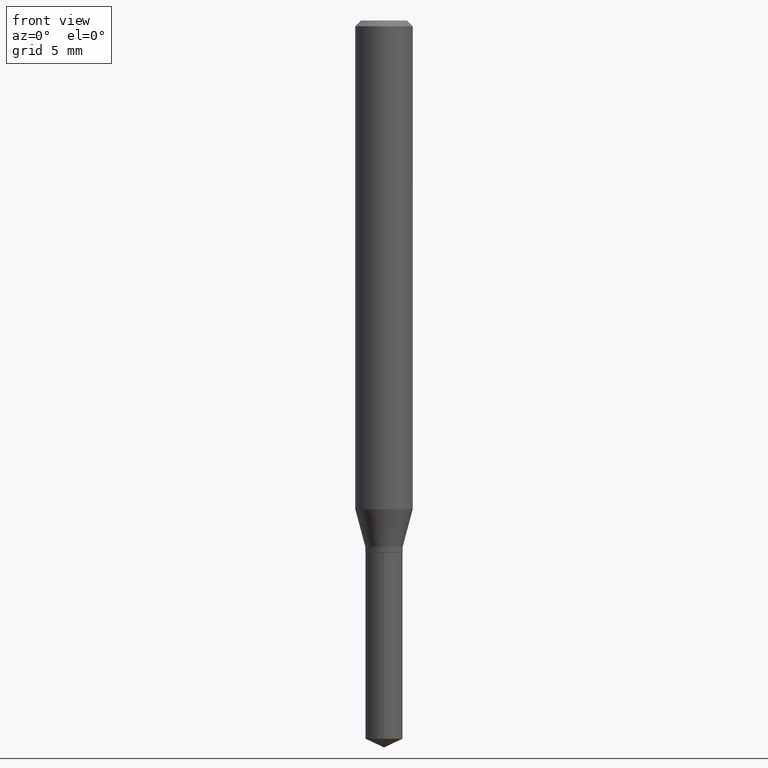
[diagram: clean part render]
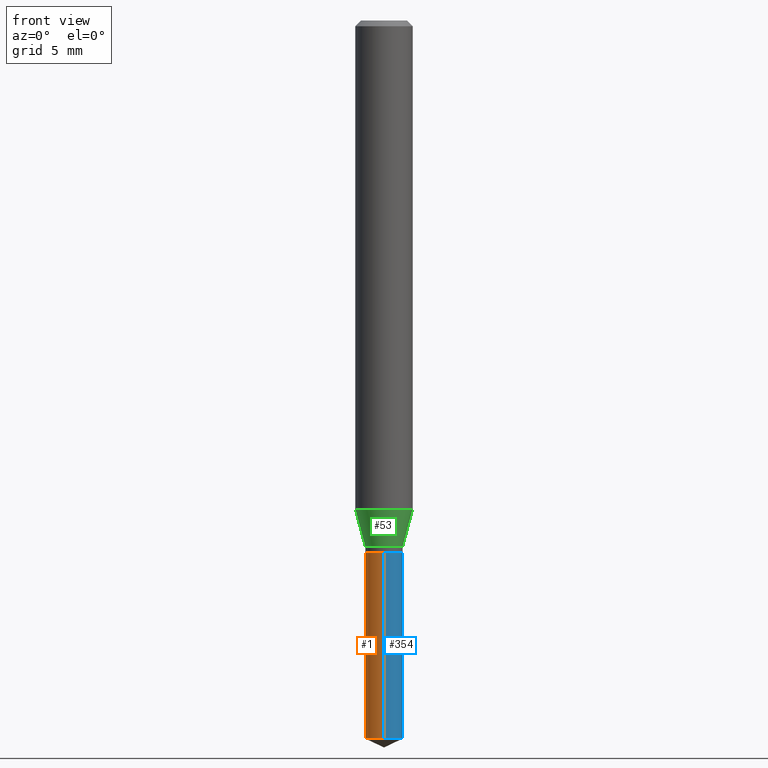
[diagram: same view with three faces highlighted in distinct colors, each labeled with its STEP entity id]
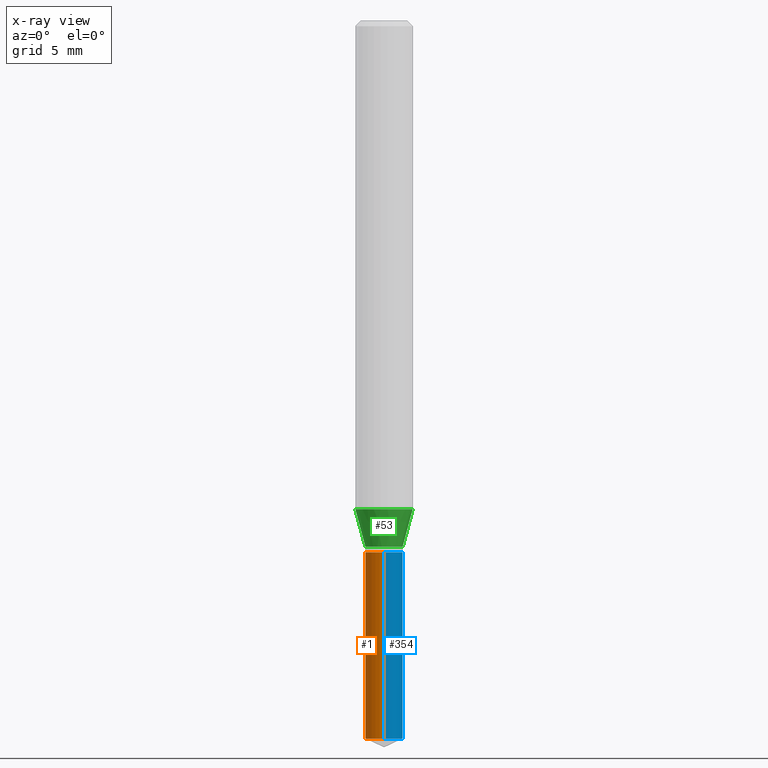
[diagram: x-ray of the same camera — body ghosted, the three highlighted faces saturated]
A machine part, front view with three faces highlighted in distinct colors.
The next image is the same camera in x-ray (body ghosted, the three faces saturated) — at least one of them is partly hidden behind the body in this view.
Their STEP definitions:

[orange] entity #1 — the highlighted cylindrical surface (edge-blend (fillet) strip) has radius 0.9754 mm, axis along (-0, 0, 1).
#1 = ADVANCED_FACE ( 'NONE', ( #374 ), #188, .T. ) ;
#25 = ORIENTED_EDGE ( 'NONE', *, *, #382, .F. ) ;
#33 = DIRECTION ( 'NONE',  ( -2.445458899330790108E-29, 3.491495526022433205E-15, 1.000000000000000000 ) ) ;
#37 = VECTOR ( 'NONE', #410, 39.37007874015748143 ) ;
#46 = CARTESIAN_POINT ( 'NONE',  ( -2.681457668231258890E-16, -0.03840000000000381997, -1.094499999999999806 ) ) ;
#58 = ORIENTED_EDGE ( 'NONE', *, *, #76, .F. ) ;
#70 = ORIENTED_EDGE ( 'NONE', *, *, #139, .T. ) ;
#76 = EDGE_CURVE ( 'NONE', #409, #366, #115, .T. ) ;
#81 = DIRECTION ( 'NONE',  ( -2.445458899330790108E-29, 3.491495526022433599E-15, 1.000000000000000000 ) ) ;
#85 = DIRECTION ( 'NONE',  ( -2.445458899330790108E-29, 3.491495526022433205E-15, 1.000000000000000000 ) ) ;
#102 = CIRCLE ( 'NONE', #356, 0.03840000000000000357 ) ;
#107 = DIRECTION ( 'NONE',  ( -6.982962677686266711E-15, -1.000000000000000000, 0.000000000000000000 ) ) ;
#115 = LINE ( 'NONE', #304, #37 ) ;
#126 = ORIENTED_EDGE ( 'NONE', *, *, #168, .T. ) ;
#139 = EDGE_CURVE ( 'NONE', #409, #463, #199, .T. ) ;
#150 = DIRECTION ( 'NONE',  ( -6.982962677686265133E-15, -1.000000000000000000, 3.557093741750342424E-15 ) ) ;
#168 = EDGE_CURVE ( 'NONE', #463, #174, #281, .T. ) ;
#174 = VERTEX_POINT ( 'NONE', #46 ) ;
#188 = CYLINDRICAL_SURFACE ( 'NONE', #254, 0.03840000000000000357 ) ;
#199 = CIRCLE ( 'NONE', #407, 0.03840000000000000357 ) ;
#254 = AXIS2_PLACEMENT_3D ( 'NONE', #485, #33, #150 ) ;
#272 = DIRECTION ( 'NONE',  ( -6.982962677686265133E-15, -1.000000000000000000, 3.557093741750342424E-15 ) ) ;
#281 = LINE ( 'NONE', #423, #425 ) ;
#304 = CARTESIAN_POINT ( 'NONE',  ( 2.728484105319052194E-16, 0.03839999999999618024, -1.094500000000000028 ) ) ;
#315 = CARTESIAN_POINT ( 'NONE',  ( 2.728484105319146858E-16, 0.03839999999999485492, -1.478193785926848136 ) ) ;
#335 = CARTESIAN_POINT ( 'NONE',  ( 3.614872991782365897E-29, -5.161091462290022333E-15, -1.478193785926848136 ) ) ;
#355 = EDGE_LOOP ( 'NONE', ( #58, #70, #126, #25 ) ) ;
#356 = AXIS2_PLACEMENT_3D ( 'NONE', #376, #85, #272 ) ;
#366 = VERTEX_POINT ( 'NONE', #411 ) ;
#374 = FACE_OUTER_BOUND ( 'NONE', #355, .T. ) ;
#376 = CARTESIAN_POINT ( 'NONE',  ( 2.676565608369631794E-29, -3.821426325363822773E-15, -1.094499999999999806 ) ) ;
#382 = EDGE_CURVE ( 'NONE', #366, #174, #102, .T. ) ;
#399 = CARTESIAN_POINT ( 'NONE',  ( -2.681457668231165706E-16, -0.03840000000000517999, -1.478193785926848136 ) ) ;
#407 = AXIS2_PLACEMENT_3D ( 'NONE', #335, #477, #107 ) ;
#409 = VERTEX_POINT ( 'NONE', #315 ) ;
#410 = DIRECTION ( 'NONE',  ( -2.445458899330790108E-29, 3.491495526022433599E-15, 1.000000000000000000 ) ) ;
#411 = CARTESIAN_POINT ( 'NONE',  ( 2.728484105319146858E-16, 0.03839999999999618718, -1.094500000000000028 ) ) ;
#423 = CARTESIAN_POINT ( 'NONE',  ( -2.681457668231258890E-16, -0.03840000000000381997, -1.094499999999999806 ) ) ;
#425 = VECTOR ( 'NONE', #81, 39.37007874015748143 ) ;
#463 = VERTEX_POINT ( 'NONE', #399 ) ;
#477 = DIRECTION ( 'NONE',  ( -2.445458899330790108E-29, 3.491495526022433205E-15, 1.000000000000000000 ) ) ;
#485 = CARTESIAN_POINT ( 'NONE',  ( 2.676565608369631794E-29, -3.821426325363822773E-15, -1.094499999999999806 ) ) ;

[blue] entity #354 — the highlighted cylindrical surface (edge-blend (fillet) strip) has radius 0.9754 mm, axis along (-0, 0, 1).
#9 = CARTESIAN_POINT ( 'NONE',  ( 2.676565608369631794E-29, -3.821426325363822773E-15, -1.094499999999999806 ) ) ;
#11 = DIRECTION ( 'NONE',  ( -6.982962677686266711E-15, -1.000000000000000000, 0.000000000000000000 ) ) ;
#17 = CYLINDRICAL_SURFACE ( 'NONE', #257, 0.03840000000000000357 ) ;
#37 = VECTOR ( 'NONE', #410, 39.37007874015748143 ) ;
#41 = CARTESIAN_POINT ( 'NONE',  ( 3.614872991782365897E-29, -5.161091462290022333E-15, -1.478193785926848136 ) ) ;
#42 = DIRECTION ( 'NONE',  ( -2.445458899330790108E-29, 3.491495526022433205E-15, 1.000000000000000000 ) ) ;
#46 = CARTESIAN_POINT ( 'NONE',  ( -2.681457668231258890E-16, -0.03840000000000381997, -1.094499999999999806 ) ) ;
#66 = FACE_OUTER_BOUND ( 'NONE', #214, .T. ) ;
#69 = CIRCLE ( 'NONE', #202, 0.03840000000000000357 ) ;
#76 = EDGE_CURVE ( 'NONE', #409, #366, #115, .T. ) ;
#81 = DIRECTION ( 'NONE',  ( -2.445458899330790108E-29, 3.491495526022433599E-15, 1.000000000000000000 ) ) ;
#91 = ORIENTED_EDGE ( 'NONE', *, *, #191, .T. ) ;
#99 = DIRECTION ( 'NONE',  ( -6.982962677686265133E-15, -1.000000000000000000, 3.557093741750342424E-15 ) ) ;
#115 = LINE ( 'NONE', #304, #37 ) ;
#118 = ORIENTED_EDGE ( 'NONE', *, *, #402, .F. ) ;
#141 = ORIENTED_EDGE ( 'NONE', *, *, #168, .F. ) ;
#145 = CIRCLE ( 'NONE', #415, 0.03840000000000000357 ) ;
#166 = DIRECTION ( 'NONE',  ( -6.982962677686265133E-15, -1.000000000000000000, 3.557093741750342424E-15 ) ) ;
#168 = EDGE_CURVE ( 'NONE', #463, #174, #281, .T. ) ;
#174 = VERTEX_POINT ( 'NONE', #46 ) ;
#191 = EDGE_CURVE ( 'NONE', #463, #409, #69, .T. ) ;
#196 = DIRECTION ( 'NONE',  ( -2.445458899330790108E-29, 3.491495526022433205E-15, 1.000000000000000000 ) ) ;
#202 = AXIS2_PLACEMENT_3D ( 'NONE', #41, #196, #11 ) ;
#214 = EDGE_LOOP ( 'NONE', ( #91, #284, #118, #141 ) ) ;
#229 = DIRECTION ( 'NONE',  ( -2.445458899330790108E-29, 3.491495526022433205E-15, 1.000000000000000000 ) ) ;
#257 = AXIS2_PLACEMENT_3D ( 'NONE', #467, #42, #99 ) ;
#281 = LINE ( 'NONE', #423, #425 ) ;
#284 = ORIENTED_EDGE ( 'NONE', *, *, #76, .T. ) ;
#304 = CARTESIAN_POINT ( 'NONE',  ( 2.728484105319052194E-16, 0.03839999999999618024, -1.094500000000000028 ) ) ;
#315 = CARTESIAN_POINT ( 'NONE',  ( 2.728484105319146858E-16, 0.03839999999999485492, -1.478193785926848136 ) ) ;
#354 = ADVANCED_FACE ( 'NONE', ( #66 ), #17, .T. ) ;
#366 = VERTEX_POINT ( 'NONE', #411 ) ;
#399 = CARTESIAN_POINT ( 'NONE',  ( -2.681457668231165706E-16, -0.03840000000000517999, -1.478193785926848136 ) ) ;
#402 = EDGE_CURVE ( 'NONE', #174, #366, #145, .T. ) ;
#409 = VERTEX_POINT ( 'NONE', #315 ) ;
#410 = DIRECTION ( 'NONE',  ( -2.445458899330790108E-29, 3.491495526022433599E-15, 1.000000000000000000 ) ) ;
#411 = CARTESIAN_POINT ( 'NONE',  ( 2.728484105319146858E-16, 0.03839999999999618718, -1.094500000000000028 ) ) ;
#415 = AXIS2_PLACEMENT_3D ( 'NONE', #9, #229, #166 ) ;
#423 = CARTESIAN_POINT ( 'NONE',  ( -2.681457668231258890E-16, -0.03840000000000381997, -1.094499999999999806 ) ) ;
#425 = VECTOR ( 'NONE', #81, 39.37007874015748143 ) ;
#463 = VERTEX_POINT ( 'NONE', #399 ) ;
#467 = CARTESIAN_POINT ( 'NONE',  ( 2.676565608369631794E-29, -3.821426325363822773E-15, -1.094499999999999806 ) ) ;

[green] entity #53 — the highlighted conical surface has half-angle 15 deg.
#7 = LINE ( 'NONE', #43, #109 ) ;
#13 = CIRCLE ( 'NONE', #190, 0.03840000000000000357 ) ;
#18 = VERTEX_POINT ( 'NONE', #154 ) ;
#23 = AXIS2_PLACEMENT_3D ( 'NONE', #299, #197, #412 ) ;
#39 = EDGE_CURVE ( 'NONE', #18, #333, #65, .T. ) ;
#43 = CARTESIAN_POINT ( 'NONE',  ( -0.03840000000000000357, -3.508425879435247821E-15, -1.082999999999999963 ) ) ;
#53 = ADVANCED_FACE ( 'NONE', ( #305 ), #144, .T. ) ;
#63 = DIRECTION ( 'NONE',  ( 1.000000000000000000, -6.982962677686264344E-15, 0.000000000000000000 ) ) ;
#65 = LINE ( 'NONE', #298, #487 ) ;
#77 = DIRECTION ( 'NONE',  ( 1.000000000000000000, -6.982962677686264344E-15, 0.000000000000000000 ) ) ;
#92 = ORIENTED_EDGE ( 'NONE', *, *, #163, .F. ) ;
#109 = VECTOR ( 'NONE', #349, 39.37007874015748854 ) ;
#111 = CARTESIAN_POINT ( 'NONE',  ( 2.648442717098502966E-29, -3.781274289967126614E-15, -1.082999999999999963 ) ) ;
#131 = CARTESIAN_POINT ( 'NONE',  ( -0.05905000000000011628, -3.092621338758304049E-15, -1.005933150823702382 ) ) ;
#144 = CONICAL_SURFACE ( 'NONE', #316, 0.03840000000000000357, 0.2617993877991499074 ) ;
#154 = CARTESIAN_POINT ( 'NONE',  ( 0.03840000000000000357, -4.049420056790279028E-15, -1.082999999999999963 ) ) ;
#160 = CIRCLE ( 'NONE', #23, 0.05905000000000011628 ) ;
#163 = EDGE_CURVE ( 'NONE', #472, #469, #7, .T. ) ;
#173 = EDGE_CURVE ( 'NONE', #472, #18, #13, .T. ) ;
#189 = ORIENTED_EDGE ( 'NONE', *, *, #303, .F. ) ;
#190 = AXIS2_PLACEMENT_3D ( 'NONE', #198, #456, #77 ) ;
#197 = DIRECTION ( 'NONE',  ( -2.445468806185136597E-29, 3.491481338843145583E-15, 1.000000000000000000 ) ) ;
#198 = CARTESIAN_POINT ( 'NONE',  ( 2.648442717098502966E-29, -3.781274289967126614E-15, -1.082999999999999963 ) ) ;
#222 = DIRECTION ( 'NONE',  ( -2.445468806185136597E-29, 3.491481338843145583E-15, 1.000000000000000000 ) ) ;
#228 = EDGE_LOOP ( 'NONE', ( #92, #436, #418, #189 ) ) ;
#298 = CARTESIAN_POINT ( 'NONE',  ( 0.03840000000000000357, -4.049420056790279028E-15, -1.082999999999999963 ) ) ;
#299 = CARTESIAN_POINT ( 'NONE',  ( 2.459978141446892264E-29, -3.512196824224644331E-15, -1.005933150823702382 ) ) ;
#303 = EDGE_CURVE ( 'NONE', #469, #333, #160, .T. ) ;
#305 = FACE_OUTER_BOUND ( 'NONE', #228, .T. ) ;
#316 = AXIS2_PLACEMENT_3D ( 'NONE', #111, #222, #63 ) ;
#333 = VERTEX_POINT ( 'NONE', #404 ) ;
#338 = DIRECTION ( 'NONE',  ( 0.2588190451025211836, 1.565188264969622559E-15, 0.9659258262890679791 ) ) ;
#349 = DIRECTION ( 'NONE',  ( -0.2588190451025211836, 5.211531920934547886E-15, 0.9659258262890679791 ) ) ;
#404 = CARTESIAN_POINT ( 'NONE',  ( 0.05905000000000011628, -3.924540770342018857E-15, -1.005933150823702382 ) ) ;
#412 = DIRECTION ( 'NONE',  ( 1.000000000000000000, -6.982962677686266711E-15, 0.000000000000000000 ) ) ;
#418 = ORIENTED_EDGE ( 'NONE', *, *, #39, .T. ) ;
#436 = ORIENTED_EDGE ( 'NONE', *, *, #173, .T. ) ;
#456 = DIRECTION ( 'NONE',  ( -2.445468806185136597E-29, 3.491481338843145583E-15, 1.000000000000000000 ) ) ;
#469 = VERTEX_POINT ( 'NONE', #131 ) ;
#471 = CARTESIAN_POINT ( 'NONE',  ( -0.03840000000000000357, -3.527629026798885149E-15, -1.082999999999999963 ) ) ;
#472 = VERTEX_POINT ( 'NONE', #471 ) ;
#487 = VECTOR ( 'NONE', #338, 39.37007874015748854 ) ;